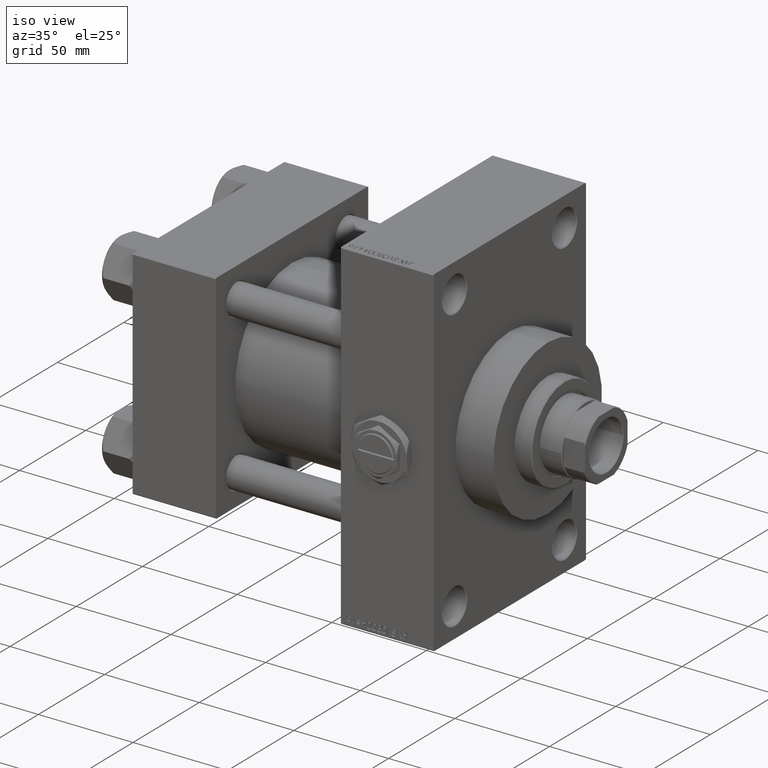
[diagram: clean part render]
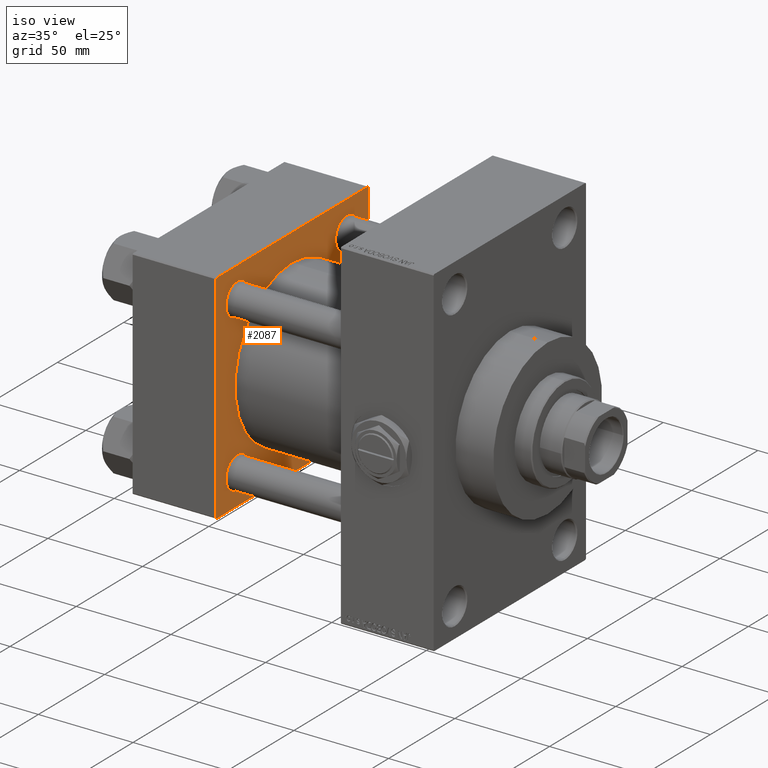
[diagram: same view with one face highlighted and labeled with its STEP entity id]
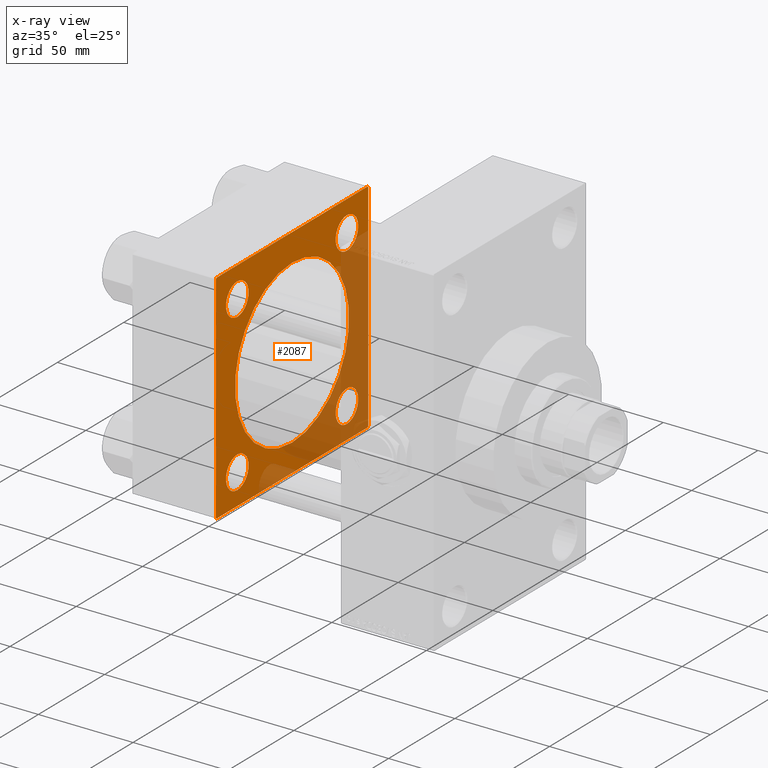
[diagram: x-ray of the same camera — body ghosted, the highlighted face saturated]
A machine part, iso view. The second image highlights one B-rep face of the part: STEP entity #2087.
The next image is the same camera in x-ray: the body ghosted, the highlighted face saturated — about 37% of this face is hidden behind the body in this view.
In plain terms, the highlighted planar face has unit normal (-1, 0, 0).
Its self-contained STEP definition (entity closure, byte-faithful):
#21 = DIRECTION ( 'NONE',  ( -0.000000000000000000, 0.000000000000000000, 1.000000000000000000 ) ) ;
#258 = CARTESIAN_POINT ( 'NONE',  ( 44.00000000000000000, 57.49999999999999289, 57.00000000000003553 ) ) ;
#334 = CARTESIAN_POINT ( 'NONE',  ( 44.00000000000000000, -2.602085213965210642E-15, 0.000000000000000000 ) ) ;
#680 = CARTESIAN_POINT ( 'NONE',  ( 44.00000000000000000, -57.00000000000000711, -57.50000000000000711 ) ) ;
#770 = PLANE ( 'NONE',  #48906 ) ;
#851 = CARTESIAN_POINT ( 'NONE',  ( 44.00000000000000000, -57.50000000000000711, -57.00000000000000711 ) ) ;
#1079 = CIRCLE ( 'NONE', #9029, 8.500000000000090594 ) ;
#1093 = DIRECTION ( 'NONE',  ( 0.000000000000000000, 0.000000000000000000, 1.000000000000000000 ) ) ;
#1396 = CARTESIAN_POINT ( 'NONE',  ( 44.00000000000000000, -41.34999999999998721, -32.84999999999992326 ) ) ;
#2087 = ADVANCED_FACE ( 'NONE', ( #8003, #27026, #12505, #46534, #23259, #11765 ), #770, .F. ) ;
#2934 = CARTESIAN_POINT ( 'NONE',  ( 44.00000000000000000, -2.602085213965210642E-15, 43.00000000000000000 ) ) ;
#2951 = EDGE_LOOP ( 'NONE', ( #12459, #39454 ) ) ;
#3184 = CARTESIAN_POINT ( 'NONE',  ( 44.00000000000000000, 57.49999999999999289, 57.50000000000000711 ) ) ;
#3250 = LINE ( 'NONE', #42261, #27113 ) ;
#3765 = VERTEX_POINT ( 'NONE', #35924 ) ;
#3810 = CARTESIAN_POINT ( 'NONE',  ( 44.00000000000000000, 41.34999999999999432, 41.35000000000000142 ) ) ;
#4230 = VERTEX_POINT ( 'NONE', #22974 ) ;
#4242 = DIRECTION ( 'NONE',  ( 0.000000000000000000, -1.000000000000000000, -1.206764157201257045E-16 ) ) ;
#4484 = VECTOR ( 'NONE', #33686, 1000.000000000000000 ) ;
#5308 = VERTEX_POINT ( 'NONE', #25698 ) ;
#5321 = AXIS2_PLACEMENT_3D ( 'NONE', #23584, #34369, #37874 ) ;
#5343 = VERTEX_POINT ( 'NONE', #680 ) ;
#5354 = DIRECTION ( 'NONE',  ( 1.000000000000000000, -0.000000000000000000, 0.000000000000000000 ) ) ;
#5493 = EDGE_CURVE ( 'NONE', #46092, #32918, #18682, .T. ) ;
#5890 = CARTESIAN_POINT ( 'NONE',  ( 44.00000000000000000, 57.00000000000000711, 57.50000000000000711 ) ) ;
#7096 = CARTESIAN_POINT ( 'NONE',  ( 44.00000000000000000, 57.00000000000002132, -57.49999999999999289 ) ) ;
#7657 = DIRECTION ( 'NONE',  ( 0.000000000000000000, 0.000000000000000000, -1.000000000000000000 ) ) ;
#8003 = FACE_BOUND ( 'NONE', #40934, .T. ) ;
#8222 = VERTEX_POINT ( 'NONE', #5890 ) ;
#8913 = DIRECTION ( 'NONE',  ( -1.000000000000000000, 0.000000000000000000, -0.000000000000000000 ) ) ;
#9029 = AXIS2_PLACEMENT_3D ( 'NONE', #12388, #27657, #42923 ) ;
#9603 = VECTOR ( 'NONE', #21790, 1000.000000000000114 ) ;
#9752 = DIRECTION ( 'NONE',  ( 0.000000000000000000, 0.000000000000000000, 1.000000000000000000 ) ) ;
#9812 = CARTESIAN_POINT ( 'NONE',  ( 44.00000000000000000, -41.34999999999998721, 32.84999999999992326 ) ) ;
#9817 = LINE ( 'NONE', #21562, #19936 ) ;
#9958 = VERTEX_POINT ( 'NONE', #38221 ) ;
#10368 = VERTEX_POINT ( 'NONE', #18733 ) ;
#10507 = CARTESIAN_POINT ( 'NONE',  ( 44.00000000000000000, -2.602085213965210642E-15, 0.000000000000000000 ) ) ;
#11765 = FACE_OUTER_BOUND ( 'NONE', #31444, .T. ) ;
#12003 = DIRECTION ( 'NONE',  ( -1.000000000000000000, 0.000000000000000000, -0.000000000000000000 ) ) ;
#12213 = VERTEX_POINT ( 'NONE', #7096 ) ;
#12388 = CARTESIAN_POINT ( 'NONE',  ( 44.00000000000000000, 41.34999999999999432, 41.35000000000000142 ) ) ;
#12459 = ORIENTED_EDGE ( 'NONE', *, *, #37439, .T. ) ;
#12505 = FACE_BOUND ( 'NONE', #23857, .T. ) ;
#12688 = VERTEX_POINT ( 'NONE', #13464 ) ;
#12716 = ORIENTED_EDGE ( 'NONE', *, *, #12820, .F. ) ;
#12738 = VECTOR ( 'NONE', #16529, 1000.000000000000114 ) ;
#12779 = CARTESIAN_POINT ( 'NONE',  ( 44.00000000000000000, -57.00000000000000711, -57.50000000000000711 ) ) ;
#12820 = EDGE_CURVE ( 'NONE', #48794, #5308, #41945, .T. ) ;
#13172 = CIRCLE ( 'NONE', #22756, 43.00000000000000000 ) ;
#13289 = VECTOR ( 'NONE', #7657, 1000.000000000000000 ) ;
#13464 = CARTESIAN_POINT ( 'NONE',  ( 44.00000000000000000, 41.34999999999999432, 32.84999999999991616 ) ) ;
#13639 = DIRECTION ( 'NONE',  ( 0.000000000000000000, 0.000000000000000000, 1.000000000000000000 ) ) ;
#13755 = EDGE_CURVE ( 'NONE', #45137, #27490, #33270, .T. ) ;
#13919 = AXIS2_PLACEMENT_3D ( 'NONE', #42699, #8913, #35698 ) ;
#14166 = EDGE_CURVE ( 'NONE', #8222, #4230, #45210, .T. ) ;
#14786 = CARTESIAN_POINT ( 'NONE',  ( 44.00000000000000000, 57.49999999999999289, -57.00000000000000711 ) ) ;
#14859 = ORIENTED_EDGE ( 'NONE', *, *, #14166, .T. ) ;
#15409 = EDGE_CURVE ( 'NONE', #23619, #9958, #25300, .T. ) ;
#15497 = LINE ( 'NONE', #42274, #37273 ) ;
#15530 = LINE ( 'NONE', #12779, #12738 ) ;
#16529 = DIRECTION ( 'NONE',  ( 0.000000000000000000, 0.7071067811865474617, -0.7071067811865474617 ) ) ;
#16811 = EDGE_LOOP ( 'NONE', ( #18837, #27631 ) ) ;
#17150 = DIRECTION ( 'NONE',  ( -1.000000000000000000, 0.000000000000000000, -0.000000000000000000 ) ) ;
#17647 = ORIENTED_EDGE ( 'NONE', *, *, #28238, .T. ) ;
#17876 = CARTESIAN_POINT ( 'NONE',  ( 44.00000000000000000, 41.34999999999999432, -41.35000000000000142 ) ) ;
#18030 = AXIS2_PLACEMENT_3D ( 'NONE', #3810, #18547, #33828 ) ;
#18502 = AXIS2_PLACEMENT_3D ( 'NONE', #27084, #23562, #41613 ) ;
#18547 = DIRECTION ( 'NONE',  ( -1.000000000000000000, 0.000000000000000000, -0.000000000000000000 ) ) ;
#18682 = CIRCLE ( 'NONE', #13919, 8.500000000000090594 ) ;
#18733 = CARTESIAN_POINT ( 'NONE',  ( 44.00000000000000000, -57.50000000000000711, 57.00000000000000711 ) ) ;
#18837 = ORIENTED_EDGE ( 'NONE', *, *, #41373, .F. ) ;
#19936 = VECTOR ( 'NONE', #48090, 1000.000000000000114 ) ;
#20324 = CARTESIAN_POINT ( 'NONE',  ( 44.00000000000000000, -41.34999999999998721, 41.35000000000000853 ) ) ;
#20599 = DIRECTION ( 'NONE',  ( 0.000000000000000000, 0.000000000000000000, 1.000000000000000000 ) ) ;
#21045 = EDGE_CURVE ( 'NONE', #24439, #5343, #15530, .T. ) ;
#21465 = CARTESIAN_POINT ( 'NONE',  ( 44.00000000000000000, -41.34999999999998721, -49.85000000000010090 ) ) ;
#21550 = LINE ( 'NONE', #14786, #9603 ) ;
#21562 = CARTESIAN_POINT ( 'NONE',  ( 44.00000000000000000, 57.00000000000000711, 57.50000000000000711 ) ) ;
#21655 = EDGE_CURVE ( 'NONE', #48794, #8222, #9817, .T. ) ;
#21790 = DIRECTION ( 'NONE',  ( -0.000000000000000000, 0.7071067811865376918, 0.7071067811865573427 ) ) ;
#22047 = EDGE_CURVE ( 'NONE', #4230, #10368, #3250, .T. ) ;
#22412 = CARTESIAN_POINT ( 'NONE',  ( 44.00000000000000000, 57.49999999999999289, 57.50000000000000711 ) ) ;
#22756 = AXIS2_PLACEMENT_3D ( 'NONE', #10507, #5354, #20599 ) ;
#22974 = CARTESIAN_POINT ( 'NONE',  ( 44.00000000000000000, -57.00000000000003553, 57.49999999999999289 ) ) ;
#23259 = FACE_BOUND ( 'NONE', #16811, .T. ) ;
#23562 = DIRECTION ( 'NONE',  ( -1.000000000000000000, 0.000000000000000000, -0.000000000000000000 ) ) ;
#23584 = CARTESIAN_POINT ( 'NONE',  ( 44.00000000000000000, -41.34999999999998721, -41.35000000000000853 ) ) ;
#23619 = VERTEX_POINT ( 'NONE', #44610 ) ;
#23857 = EDGE_LOOP ( 'NONE', ( #17647, #27403 ) ) ;
#24439 = VERTEX_POINT ( 'NONE', #851 ) ;
#24565 = EDGE_CURVE ( 'NONE', #9958, #23619, #30237, .T. ) ;
#24776 = ORIENTED_EDGE ( 'NONE', *, *, #21045, .T. ) ;
#24932 = VERTEX_POINT ( 'NONE', #2934 ) ;
#25300 = CIRCLE ( 'NONE', #27713, 8.500000000000090594 ) ;
#25698 = CARTESIAN_POINT ( 'NONE',  ( 44.00000000000000000, 57.49999999999999289, -57.00000000000000711 ) ) ;
#25815 = VERTEX_POINT ( 'NONE', #47251 ) ;
#27026 = FACE_BOUND ( 'NONE', #33711, .T. ) ;
#27084 = CARTESIAN_POINT ( 'NONE',  ( 44.00000000000000000, -41.34999999999998721, -41.35000000000000853 ) ) ;
#27113 = VECTOR ( 'NONE', #30002, 1000.000000000000114 ) ;
#27302 = EDGE_CURVE ( 'NONE', #12213, #5308, #21550, .T. ) ;
#27403 = ORIENTED_EDGE ( 'NONE', *, *, #5493, .T. ) ;
#27490 = VERTEX_POINT ( 'NONE', #1396 ) ;
#27631 = ORIENTED_EDGE ( 'NONE', *, *, #31469, .F. ) ;
#27657 = DIRECTION ( 'NONE',  ( -1.000000000000000000, 0.000000000000000000, -0.000000000000000000 ) ) ;
#27713 = AXIS2_PLACEMENT_3D ( 'NONE', #17876, #17150, #13639 ) ;
#28238 = EDGE_CURVE ( 'NONE', #32918, #46092, #44788, .T. ) ;
#29871 = ORIENTED_EDGE ( 'NONE', *, *, #15409, .T. ) ;
#30002 = DIRECTION ( 'NONE',  ( -0.000000000000000000, -0.7071067811865376918, -0.7071067811865573427 ) ) ;
#30038 = CIRCLE ( 'NONE', #18030, 8.500000000000090594 ) ;
#30237 = CIRCLE ( 'NONE', #36639, 8.500000000000090594 ) ;
#31094 = DIRECTION ( 'NONE',  ( -1.000000000000000000, 0.000000000000000000, -0.000000000000000000 ) ) ;
#31302 = CIRCLE ( 'NONE', #44097, 43.00000000000000000 ) ;
#31444 = EDGE_LOOP ( 'NONE', ( #47909, #36588, #12716, #39033, #14859, #41665, #39508, #24776 ) ) ;
#31469 = EDGE_CURVE ( 'NONE', #3765, #24932, #31302, .T. ) ;
#32918 = VERTEX_POINT ( 'NONE', #9812 ) ;
#33270 = CIRCLE ( 'NONE', #5321, 8.500000000000090594 ) ;
#33686 = DIRECTION ( 'NONE',  ( 0.000000000000000000, -1.000000000000000000, -1.206764157201257045E-16 ) ) ;
#33711 = EDGE_LOOP ( 'NONE', ( #39757, #29871 ) ) ;
#33828 = DIRECTION ( 'NONE',  ( 0.000000000000000000, 0.000000000000000000, 1.000000000000000000 ) ) ;
#34157 = EDGE_CURVE ( 'NONE', #27490, #45137, #40872, .T. ) ;
#34369 = DIRECTION ( 'NONE',  ( -1.000000000000000000, 0.000000000000000000, -0.000000000000000000 ) ) ;
#35276 = CARTESIAN_POINT ( 'NONE',  ( 44.00000000000000000, 0.000000000000000000, 0.000000000000000000 ) ) ;
#35667 = LINE ( 'NONE', #42668, #44989 ) ;
#35698 = DIRECTION ( 'NONE',  ( 0.000000000000000000, 0.000000000000000000, 1.000000000000000000 ) ) ;
#35924 = CARTESIAN_POINT ( 'NONE',  ( 44.00000000000000000, 2.663896022368408223E-15, -43.00000000000000000 ) ) ;
#36296 = DIRECTION ( 'NONE',  ( -1.000000000000000000, 0.000000000000000000, -0.000000000000000000 ) ) ;
#36588 = ORIENTED_EDGE ( 'NONE', *, *, #27302, .T. ) ;
#36639 = AXIS2_PLACEMENT_3D ( 'NONE', #43557, #36296, #9752 ) ;
#37273 = VECTOR ( 'NONE', #4242, 1000.000000000000000 ) ;
#37437 = EDGE_CURVE ( 'NONE', #10368, #24439, #35667, .T. ) ;
#37439 = EDGE_CURVE ( 'NONE', #12688, #25815, #1079, .T. ) ;
#37874 = DIRECTION ( 'NONE',  ( 0.000000000000000000, 0.000000000000000000, 1.000000000000000000 ) ) ;
#38221 = CARTESIAN_POINT ( 'NONE',  ( 44.00000000000000000, 41.34999999999999432, -49.85000000000009379 ) ) ;
#38609 = DIRECTION ( 'NONE',  ( 0.000000000000000000, 0.000000000000000000, 1.000000000000000000 ) ) ;
#38863 = DIRECTION ( 'NONE',  ( 1.000000000000000000, -0.000000000000000000, 0.000000000000000000 ) ) ;
#39033 = ORIENTED_EDGE ( 'NONE', *, *, #21655, .T. ) ;
#39454 = ORIENTED_EDGE ( 'NONE', *, *, #47784, .T. ) ;
#39508 = ORIENTED_EDGE ( 'NONE', *, *, #37437, .T. ) ;
#39757 = ORIENTED_EDGE ( 'NONE', *, *, #24565, .T. ) ;
#40872 = CIRCLE ( 'NONE', #18502, 8.500000000000090594 ) ;
#40934 = EDGE_LOOP ( 'NONE', ( #45351, #49162 ) ) ;
#41373 = EDGE_CURVE ( 'NONE', #24932, #3765, #13172, .T. ) ;
#41613 = DIRECTION ( 'NONE',  ( 0.000000000000000000, 0.000000000000000000, 1.000000000000000000 ) ) ;
#41665 = ORIENTED_EDGE ( 'NONE', *, *, #22047, .T. ) ;
#41945 = LINE ( 'NONE', #3184, #13289 ) ;
#42261 = CARTESIAN_POINT ( 'NONE',  ( 44.00000000000000000, -57.50000000000000711, 57.00000000000000711 ) ) ;
#42274 = CARTESIAN_POINT ( 'NONE',  ( 44.00000000000000000, 57.49999999999999289, -57.49999999999999289 ) ) ;
#42668 = CARTESIAN_POINT ( 'NONE',  ( 44.00000000000000000, -57.50000000000000711, 57.49999999999999289 ) ) ;
#42699 = CARTESIAN_POINT ( 'NONE',  ( 44.00000000000000000, -41.34999999999998721, 41.35000000000000853 ) ) ;
#42923 = DIRECTION ( 'NONE',  ( 0.000000000000000000, 0.000000000000000000, 1.000000000000000000 ) ) ;
#43557 = CARTESIAN_POINT ( 'NONE',  ( 44.00000000000000000, 41.34999999999999432, -41.35000000000000142 ) ) ;
#44097 = AXIS2_PLACEMENT_3D ( 'NONE', #334, #38863, #38609 ) ;
#44610 = CARTESIAN_POINT ( 'NONE',  ( 44.00000000000000000, 41.34999999999999432, -32.84999999999991616 ) ) ;
#44788 = CIRCLE ( 'NONE', #47180, 8.500000000000090594 ) ;
#44941 = EDGE_CURVE ( 'NONE', #12213, #5343, #15497, .T. ) ;
#44989 = VECTOR ( 'NONE', #46671, 1000.000000000000000 ) ;
#45137 = VERTEX_POINT ( 'NONE', #21465 ) ;
#45210 = LINE ( 'NONE', #22412, #4484 ) ;
#45351 = ORIENTED_EDGE ( 'NONE', *, *, #13755, .T. ) ;
#46092 = VERTEX_POINT ( 'NONE', #48439 ) ;
#46534 = FACE_BOUND ( 'NONE', #2951, .T. ) ;
#46671 = DIRECTION ( 'NONE',  ( 0.000000000000000000, 0.000000000000000000, -1.000000000000000000 ) ) ;
#47180 = AXIS2_PLACEMENT_3D ( 'NONE', #20324, #31094, #1093 ) ;
#47251 = CARTESIAN_POINT ( 'NONE',  ( 44.00000000000000000, 41.34999999999999432, 49.85000000000009379 ) ) ;
#47784 = EDGE_CURVE ( 'NONE', #25815, #12688, #30038, .T. ) ;
#47909 = ORIENTED_EDGE ( 'NONE', *, *, #44941, .F. ) ;
#48090 = DIRECTION ( 'NONE',  ( 0.000000000000000000, -0.7071067811865573427, 0.7071067811865376918 ) ) ;
#48439 = CARTESIAN_POINT ( 'NONE',  ( 44.00000000000000000, -41.34999999999998721, 49.85000000000010090 ) ) ;
#48794 = VERTEX_POINT ( 'NONE', #258 ) ;
#48906 = AXIS2_PLACEMENT_3D ( 'NONE', #35276, #12003, #21 ) ;
#49162 = ORIENTED_EDGE ( 'NONE', *, *, #34157, .T. ) ;